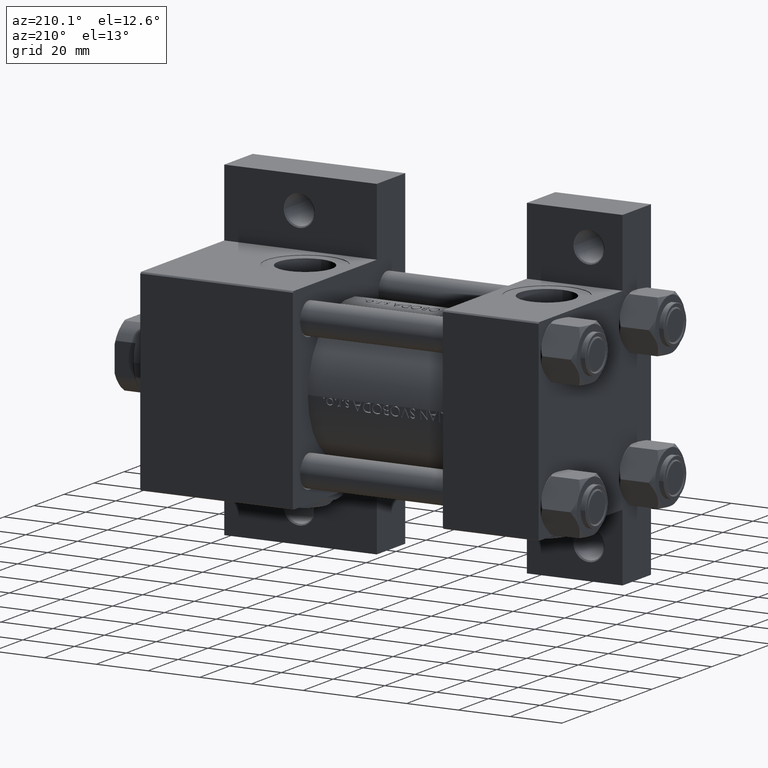
[diagram: clean part render]
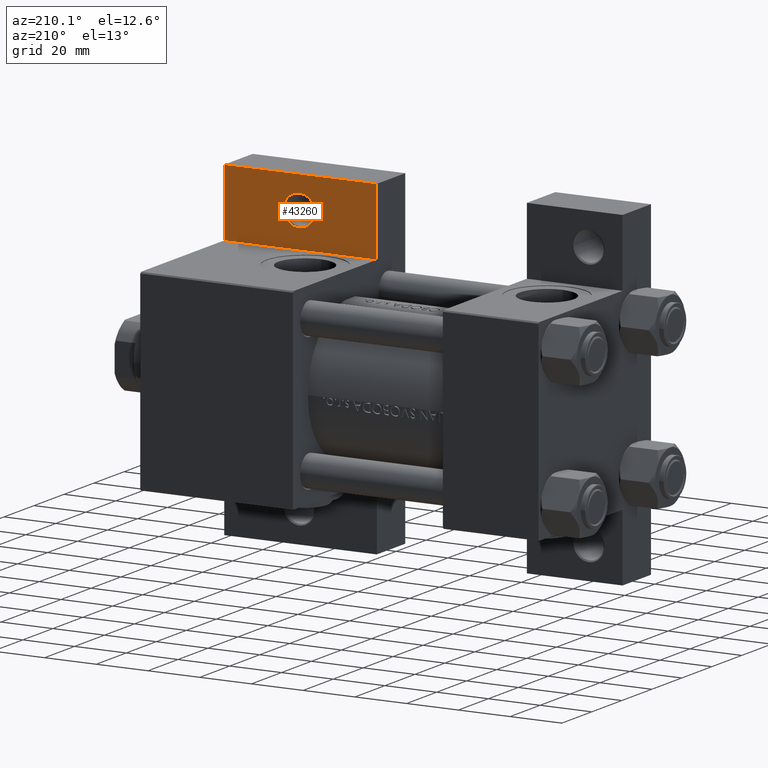
[diagram: same view with one face highlighted and labeled with its STEP entity id]
A machine part, auxiliary view. The second image highlights one B-rep face of the part: STEP entity #43260.
In plain terms, the highlighted planar face has unit normal (0, -1, 0).
Its self-contained STEP definition (entity closure, byte-faithful):
#291 = LINE ( 'NONE', #42408, #14058 ) ;
#1374 = VERTEX_POINT ( 'NONE', #47388 ) ;
#1565 = CARTESIAN_POINT ( 'NONE',  ( 154.0000000000000000, -37.50000000000000711, -18.50000000000000355 ) ) ;
#2325 = AXIS2_PLACEMENT_3D ( 'NONE', #11082, #34384, #22592 ) ;
#2599 = CARTESIAN_POINT ( 'NONE',  ( 125.0000000000000000, -51.00000000000000000, -18.50000000000000000 ) ) ;
#3802 = FACE_BOUND ( 'NONE', #46180, .T. ) ;
#4310 = VECTOR ( 'NONE', #9830, 1000.000000000000000 ) ;
#4535 = VERTEX_POINT ( 'NONE', #1565 ) ;
#4585 = EDGE_CURVE ( 'NONE', #36404, #1374, #28882, .T. ) ;
#6811 = ORIENTED_EDGE ( 'NONE', *, *, #33047, .F. ) ;
#7804 = FACE_OUTER_BOUND ( 'NONE', #31038, .T. ) ;
#9830 = DIRECTION ( 'NONE',  ( 5.337610695313252371E-16, 1.000000000000000000, 0.000000000000000000 ) ) ;
#10256 = VECTOR ( 'NONE', #44469, 1000.000000000000000 ) ;
#11082 = CARTESIAN_POINT ( 'NONE',  ( 0.000000000000000000, 0.000000000000000000, -18.50000000000000000 ) ) ;
#13196 = CIRCLE ( 'NONE', #42844, 5.999500000000046462 ) ;
#14058 = VECTOR ( 'NONE', #30879, 1000.000000000000000 ) ;
#14142 = DIRECTION ( 'NONE',  ( 0.000000000000000000, 0.000000000000000000, -1.000000000000000000 ) ) ;
#15000 = CARTESIAN_POINT ( 'NONE',  ( 153.9999999999999716, -63.50000000000002842, -18.50000000000000000 ) ) ;
#15961 = CARTESIAN_POINT ( 'NONE',  ( 153.9999999999999716, -63.50000000000002842, -18.50000000000000000 ) ) ;
#16478 = DIRECTION ( 'NONE',  ( -1.000000000000000000, 0.000000000000000000, 0.000000000000000000 ) ) ;
#16894 = DIRECTION ( 'NONE',  ( -1.000000000000000000, 0.000000000000000000, 0.000000000000000000 ) ) ;
#19086 = PLANE ( 'NONE',  #2325 ) ;
#19603 = AXIS2_PLACEMENT_3D ( 'NONE', #23999, #28242, #16478 ) ;
#22592 = DIRECTION ( 'NONE',  ( -1.000000000000000000, 0.000000000000000000, -0.000000000000000000 ) ) ;
#23241 = CARTESIAN_POINT ( 'NONE',  ( 94.99999999999998579, -63.50000000000000000, -18.50000000000000000 ) ) ;
#23999 = CARTESIAN_POINT ( 'NONE',  ( 125.0000000000000000, -51.00000000000000000, -18.50000000000000000 ) ) ;
#25666 = ORIENTED_EDGE ( 'NONE', *, *, #38928, .F. ) ;
#28242 = DIRECTION ( 'NONE',  ( 0.000000000000000000, 0.000000000000000000, -1.000000000000000000 ) ) ;
#28882 = LINE ( 'NONE', #44185, #4310 ) ;
#29407 = LINE ( 'NONE', #40946, #10256 ) ;
#29819 = VERTEX_POINT ( 'NONE', #39112 ) ;
#29954 = ORIENTED_EDGE ( 'NONE', *, *, #40200, .F. ) ;
#30241 = EDGE_CURVE ( 'NONE', #29819, #44743, #34043, .T. ) ;
#30288 = DIRECTION ( 'NONE',  ( -0.000000000000000000, -1.000000000000000000, -0.000000000000000000 ) ) ;
#30530 = EDGE_CURVE ( 'NONE', #44743, #29819, #13196, .T. ) ;
#30879 = DIRECTION ( 'NONE',  ( 1.000000000000000000, -3.528251137579948571E-16, 0.000000000000000000 ) ) ;
#31038 = EDGE_LOOP ( 'NONE', ( #29954, #6811, #49228, #25666 ) ) ;
#33047 = EDGE_CURVE ( 'NONE', #1374, #4535, #291, .T. ) ;
#33298 = LINE ( 'NONE', #15000, #47013 ) ;
#34043 = CIRCLE ( 'NONE', #19603, 5.999500000000046462 ) ;
#34384 = DIRECTION ( 'NONE',  ( 0.000000000000000000, 0.000000000000000000, -1.000000000000000000 ) ) ;
#35323 = CARTESIAN_POINT ( 'NONE',  ( 130.9995000000000118, -51.00000000000000000, -18.50000000000000000 ) ) ;
#36404 = VERTEX_POINT ( 'NONE', #23241 ) ;
#38575 = ORIENTED_EDGE ( 'NONE', *, *, #30530, .T. ) ;
#38928 = EDGE_CURVE ( 'NONE', #45313, #36404, #29407, .T. ) ;
#39112 = CARTESIAN_POINT ( 'NONE',  ( 119.0004999999999598, -51.00000000000000000, -18.50000000000000000 ) ) ;
#40200 = EDGE_CURVE ( 'NONE', #4535, #45313, #33298, .T. ) ;
#40946 = CARTESIAN_POINT ( 'NONE',  ( 94.99999999999998579, -63.50000000000000000, -18.50000000000000000 ) ) ;
#42408 = CARTESIAN_POINT ( 'NONE',  ( 95.00000000000000000, -37.50000000000000000, -18.50000000000000000 ) ) ;
#42844 = AXIS2_PLACEMENT_3D ( 'NONE', #2599, #14142, #16894 ) ;
#43260 = ADVANCED_FACE ( 'NONE', ( #3802, #7804 ), #19086, .F. ) ;
#44185 = CARTESIAN_POINT ( 'NONE',  ( 94.99999999999998579, -63.50000000000000000, -18.50000000000000000 ) ) ;
#44469 = DIRECTION ( 'NONE',  ( -1.000000000000000000, 4.704334850106596780E-16, -0.000000000000000000 ) ) ;
#44743 = VERTEX_POINT ( 'NONE', #35323 ) ;
#45313 = VERTEX_POINT ( 'NONE', #15961 ) ;
#46180 = EDGE_LOOP ( 'NONE', ( #38575, #49399 ) ) ;
#47013 = VECTOR ( 'NONE', #30288, 1000.000000000000000 ) ;
#47388 = CARTESIAN_POINT ( 'NONE',  ( 95.00000000000000000, -37.50000000000000000, -18.50000000000000000 ) ) ;
#49228 = ORIENTED_EDGE ( 'NONE', *, *, #4585, .F. ) ;
#49399 = ORIENTED_EDGE ( 'NONE', *, *, #30241, .T. ) ;